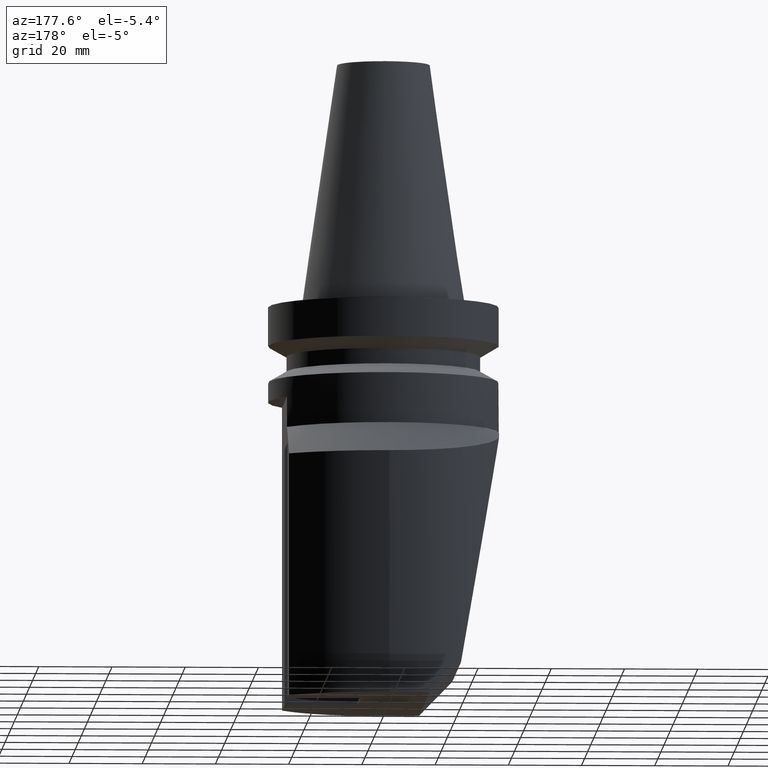
[diagram: clean part render]
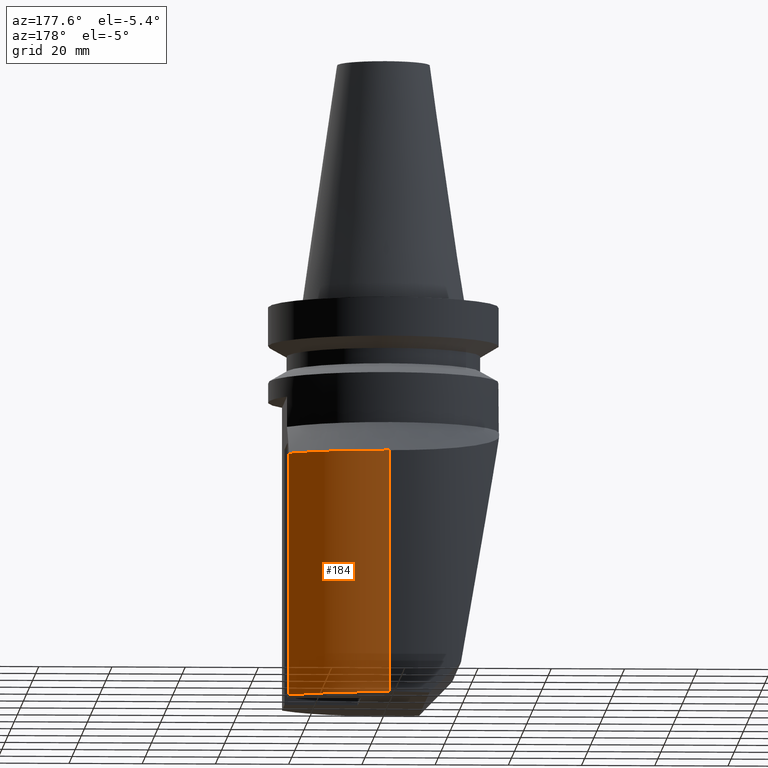
[diagram: same view with one face highlighted and labeled with its STEP entity id]
A machine part, auxiliary view. The second image highlights one B-rep face of the part: STEP entity #184.
In plain terms, the highlighted cylindrical surface (partial cylindrical patch) has radius 40 mm, axis along (0, 0, -1).
Its self-contained STEP definition (entity closure, byte-faithful):
#184=ADVANCED_FACE('Unnamed[1]',(#411),#412,.T.);
#198=EDGE_CURVE('Unnamed[1]',#430,#381,#431,.T.);
#203=EDGE_CURVE('Unnamed[1]',#378,#381,#437,.T.);
#215=EDGE_CURVE('Unnamed[1]',#378,#453,#454,.T.);
#234=EDGE_CURVE('Unnamed[1]',#453,#430,#478,.T.);
#378=VERTEX_POINT('',#675);
#381=VERTEX_POINT('',#679);
#411=FACE_OUTER_BOUND('',#810,.T.);
#412=CYLINDRICAL_SURFACE('',#811,40.0);
#430=VERTEX_POINT('',#837);
#431=B_SPLINE_CURVE_WITH_KNOTS('',3,(#838,#839,#840,#841,#842,#843,#844,#845,#846,#847,#848,#849,#850,#851,#852,#853,#854,#855,#856,#857,#858,#859,#860,#861,#862),.UNSPECIFIED.,.F.,.F.,(4,3,3,3,3,3,3,3,4),(92.2282295796958,97.5359109906334,97.9403669288206,101.706929684714,105.473492440607,109.2400551965,113.006617952393,116.773180708287,120.53974346418),.UNSPECIFIED.);
#437=LINE('',#870,#871);
#453=VERTEX_POINT('',#893);
#454=CIRCLE('',#894,40.0);
#478=LINE('',#943,#944);
#675=CARTESIAN_POINT('',(1.66997104882923E-015,39.9965718427626,-110.000000000003));
#679=CARTESIAN_POINT('',(-2.383819770438E-015,39.9965718427626,-43.7965718427641));
#810=EDGE_LOOP('',(#1135,#1136,#1137,#1138));
#811=AXIS2_PLACEMENT_3D('',#1139,#1140,#1141);
#837=CARTESIAN_POINT('',(26.9999999999998,29.5092809695102,-43.7974707117538));
#838=CARTESIAN_POINT('',(26.9999999999998,29.5092809695102,-43.7974707117538));
#839=CARTESIAN_POINT('',(25.639781732524,30.7536903886564,-43.7973640542307));
#840=CARTESIAN_POINT('',(24.1922388365803,31.9052506827407,-43.7972653543198));
#841=CARTESIAN_POINT('',(22.6666666666733,32.9544574275801,-43.7971754268272));
#842=CARTESIAN_POINT('',(22.55041501638,33.0344090798142,-43.7971685741724));
#843=CARTESIAN_POINT('',(22.4336466771592,33.1138100399156,-43.7971617687157));
#844=CARTESIAN_POINT('',(22.3163716887367,33.192649241307,-43.7971550114056));
#845=CARTESIAN_POINT('',(21.2242289807572,33.9268523315035,-43.7970920828389));
#846=CARTESIAN_POINT('',(20.0879118015916,34.6122287762461,-43.7970333390565));
#847=CARTESIAN_POINT('',(18.9163633405861,35.2410210222707,-43.7969794450196));
#848=CARTESIAN_POINT('',(17.7448148795807,35.8698132682953,-43.7969255509826));
#849=CARTESIAN_POINT('',(16.5380368050175,36.4420244238967,-43.7968765064251));
#850=CARTESIAN_POINT('',(15.3062175047475,36.9522169554834,-43.7968327774572));
#851=CARTESIAN_POINT('',(14.0743982044774,37.4624094870701,-43.7967890484892));
#852=CARTESIAN_POINT('',(12.8164356656084,37.9110398242069,-43.7967505959902));
#853=CARTESIAN_POINT('',(11.5433792866944,38.2947492751616,-43.7967177078832));
#854=CARTESIAN_POINT('',(10.2703229077806,38.6784587261162,-43.7966848197762));
#855=CARTESIAN_POINT('',(8.98217167078349,38.997243913277,-43.796657496351));
#856=CARTESIAN_POINT('',(7.69073483482853,39.2502671809133,-43.7966358094384));
#857=CARTESIAN_POINT('',(6.39929799887315,39.5032904485497,-43.7966141225257));
#858=CARTESIAN_POINT('',(5.10444225300691,39.690570505782,-43.7965980705222));
#859=CARTESIAN_POINT('',(3.81849819759746,39.8138930926275,-43.79658750039));
#860=CARTESIAN_POINT('',(2.53255414218834,39.937215679473,-43.7965769302577));
#861=CARTESIAN_POINT('',(1.25552091863108,39.9965718427626,-43.7965718427641));
#862=CARTESIAN_POINT('',(7.7715611723761E-015,39.9965718427626,-43.7965718427641));
#870=CARTESIAN_POINT('',(1.16506325477906E-014,39.9965718427626,-272.996571842762));
#871=VECTOR('',#1171,1.0);
#893=CARTESIAN_POINT('',(26.9999999999998,29.5092809695102,-110.0));
#894=AXIS2_PLACEMENT_3D('',#1191,#1192,#1193);
#943=CARTESIAN_POINT('',(26.9999999999998,29.5092809695102,-272.996571842762));
#944=VECTOR('',#1212,1.0);
#1135=ORIENTED_EDGE('',*,*,#203,.T.);
#1136=ORIENTED_EDGE('',*,*,#198,.F.);
#1137=ORIENTED_EDGE('',*,*,#234,.F.);
#1138=ORIENTED_EDGE('',*,*,#215,.F.);
#1139=CARTESIAN_POINT('',(1.6716218894272E-014,-0.0034281572373591,-272.996571842762));
#1140=DIRECTION('',(6.12323399573676E-017,1.22464679914735E-016,-1.0));
#1141=DIRECTION('',(-1.0,1.22464679914735E-016,-6.12323399573676E-017));
#1171=DIRECTION('',(-6.12323399573677E-017,-1.22464679914735E-016,1.0));
#1191=CARTESIAN_POINT('',(6.73555739531035E-015,-0.00342815723737907,-109.999999999998));
#1192=DIRECTION('',(6.12323399573676E-017,-7.73266935179359E-014,-1.0));
#1193=DIRECTION('',(-1.0,1.22464679914735E-016,-6.12323399573771E-017));
#1212=DIRECTION('',(-6.12323399573676E-017,-1.22464679914735E-016,1.0));